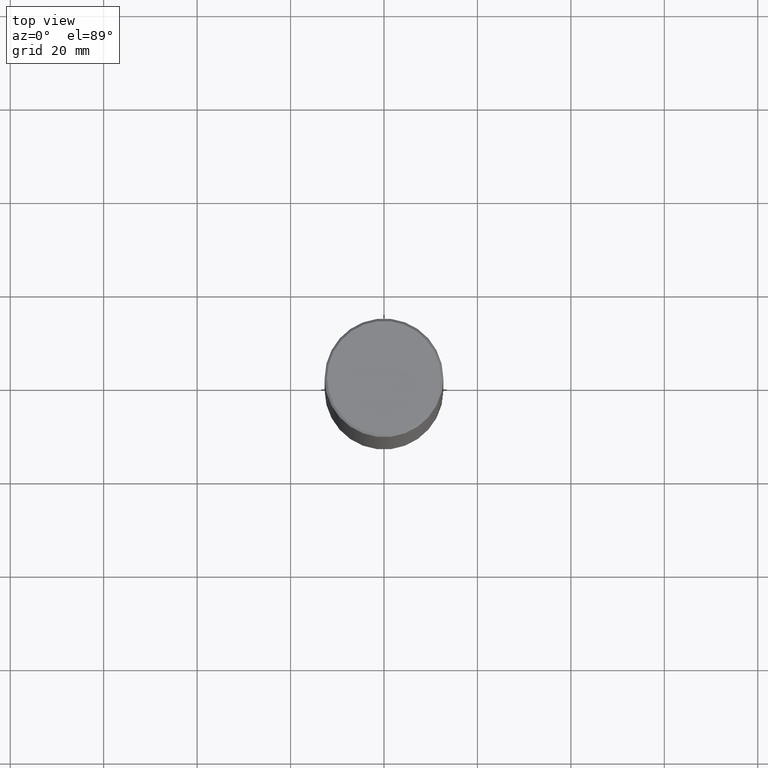
[diagram: clean part render]
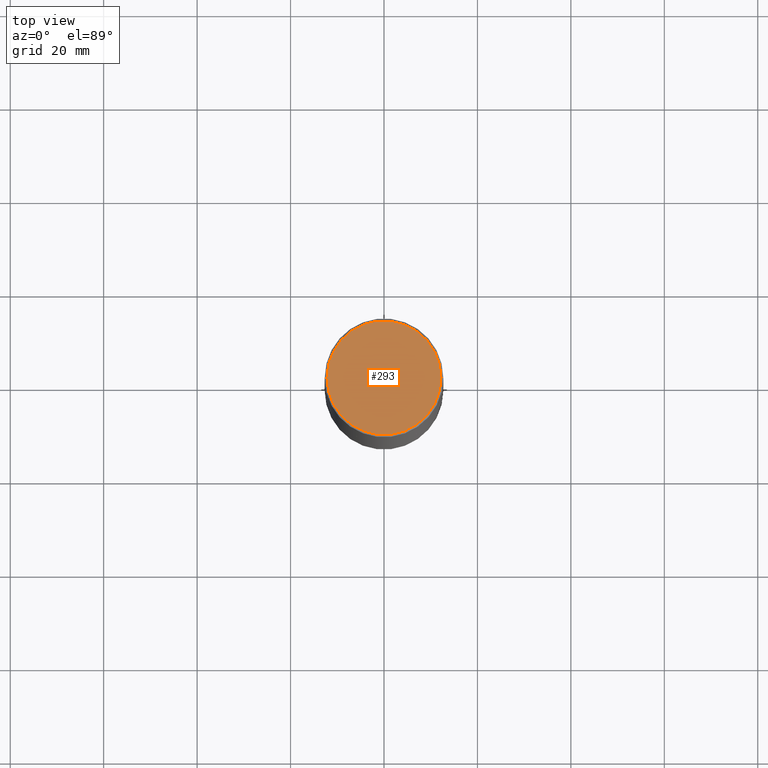
[diagram: same view with one face highlighted and labeled with its STEP entity id]
A machine part, top view. The second image highlights one B-rep face of the part: STEP entity #293.
In plain terms, the highlighted planar face has unit normal (0, -0, -1).
Its self-contained STEP definition (entity closure, byte-faithful):
#9 = VERTEX_POINT ( 'NONE', #183 ) ;
#10 = PLANE ( 'NONE',  #231 ) ;
#11 = DIRECTION ( 'NONE',  ( 2.438088387897960049E-29, -3.491481338843145188E-15, -1.000000000000000000 ) ) ;
#22 = EDGE_CURVE ( 'NONE', #9, #297, #30, .T. ) ;
#26 = ORIENTED_EDGE ( 'NONE', *, *, #22, .T. ) ;
#30 = CIRCLE ( 'NONE', #134, 0.4799999999999995937 ) ;
#62 = EDGE_LOOP ( 'NONE', ( #95, #26 ) ) ;
#71 = DIRECTION ( 'NONE',  ( -2.445468806185136597E-29, 3.491481338843145583E-15, 1.000000000000000000 ) ) ;
#89 = CARTESIAN_POINT ( 'NONE',  ( -3.131554243005659264E-46, 4.471029511141341874E-32, 1.280553747030123384E-17 ) ) ;
#95 = ORIENTED_EDGE ( 'NONE', *, *, #228, .T. ) ;
#118 = DIRECTION ( 'NONE',  ( -1.000000000000000000, 6.982962677686265922E-15, -4.876176775795935793E-29 ) ) ;
#128 = CARTESIAN_POINT ( 'NONE',  ( -3.131554243005659264E-46, 4.471029511141341874E-32, 1.280553747030123384E-17 ) ) ;
#134 = AXIS2_PLACEMENT_3D ( 'NONE', #128, #71, #189 ) ;
#148 = AXIS2_PLACEMENT_3D ( 'NONE', #89, #318, #203 ) ;
#149 = FACE_OUTER_BOUND ( 'NONE', #62, .T. ) ;
#183 = CARTESIAN_POINT ( 'NONE',  ( 0.4799999999999995937, -3.396558832296479338E-15, 1.280553747032483033E-17 ) ) ;
#189 = DIRECTION ( 'NONE',  ( 1.000000000000000000, -6.982962677686266711E-15, 4.876036955247133327E-29 ) ) ;
#203 = DIRECTION ( 'NONE',  ( 1.000000000000000000, -6.982962677686266711E-15, 4.876036955247133327E-29 ) ) ;
#218 = CARTESIAN_POINT ( 'NONE',  ( -0.4799999999999995937, 3.386736898677836436E-15, 1.280553747027767124E-17 ) ) ;
#228 = EDGE_CURVE ( 'NONE', #297, #9, #295, .T. ) ;
#231 = AXIS2_PLACEMENT_3D ( 'NONE', #273, #11, #118 ) ;
#273 = CARTESIAN_POINT ( 'NONE',  ( 3.351822085289404787E-15, 0.4799999999999995937, -1.669508273909557867E-15 ) ) ;
#293 = ADVANCED_FACE ( 'NONE', ( #149 ), #10, .F. ) ;
#295 = CIRCLE ( 'NONE', #148, 0.4799999999999995937 ) ;
#297 = VERTEX_POINT ( 'NONE', #218 ) ;
#318 = DIRECTION ( 'NONE',  ( -2.445468806185136597E-29, 3.491481338843145583E-15, 1.000000000000000000 ) ) ;